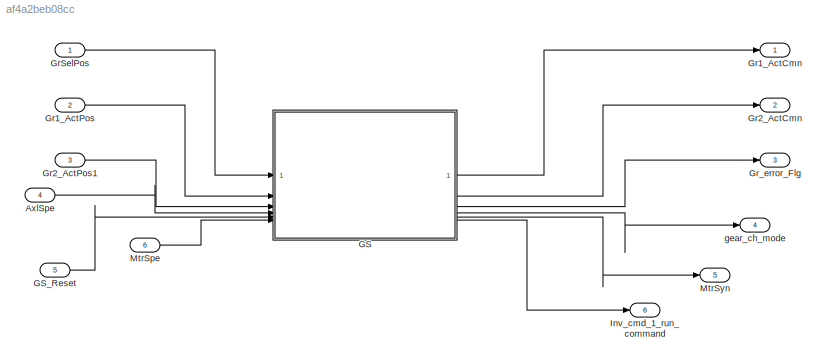
MODEL slx_af4a2beb08cc
KIND model
CONFIG AbsTol = auto
CONFIG EnableMultiTasking = off
CONFIG FixedStep = auto
CONFIG MaxStep = auto
CONFIG MinStep = auto
CONFIG RelTol = 1e-3
CONFIG SampleTimeConstraint = Unconstrained
CONFIG SolverName = VariableStepAuto
CONFIG StartTime = 0.0
CONFIG StopTime = 10.0
BLOCK [Inport] AxlSpe
  Port = 4
  Unit = rpm
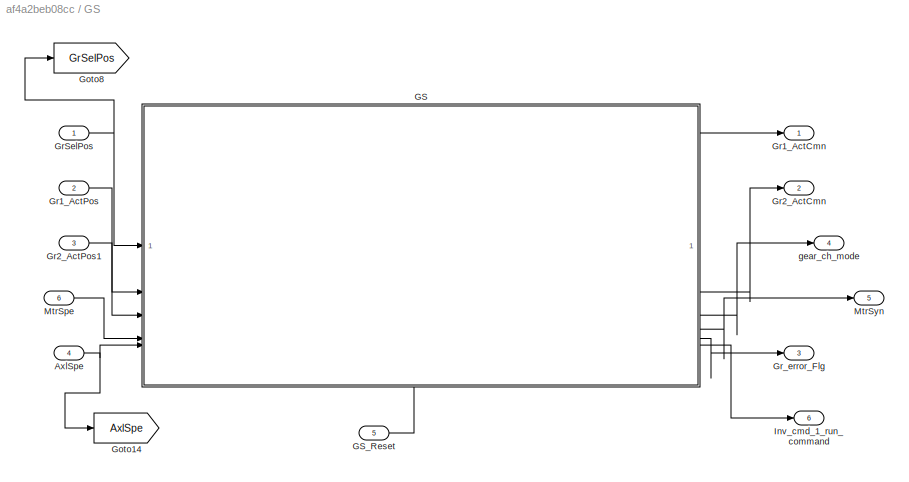
BLOCK [SubSystem] GS
  TreatAsAtomicUnit = on
BLOCK [Inport] GS/AxlSpe
  Port = 4
  Unit = rpm
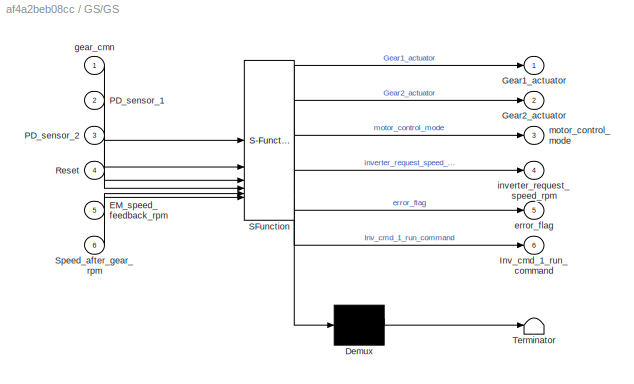
BLOCK [SubSystem] GS/GS
  ErrorFcn = Stateflow.Translate.translate
  PermitHierarchicalResolution = ExplicitOnly
  PortSchema = {"entries":[{"content":{"sides":[{"content":{"connectorIds":["In1","In2","In3","In5","In6"]},"type":"ConnectorPlacement.EquallySpacedRectSide","uuid":"d6e14f2c-3aed-42e8-8853-b3bc1cd3db5e"},{"content":{"connectorIds":["Out1","Out2","Out3","Out4","Out5","Out6"],"side":"RIGHT"},"type":"ConnectorPlacement.EquallySpacedRectSide","uuid":"2ce6c22a-ad7c-4e64-9a73-673441d8f644"},{"content":{"side":"TOP"},...<+430ch>
  SFBlockType = Chart
  TreatAsAtomicUnit = on
BLOCK [Demux] GS/GS/ Demux 
  Outputs = 1
BLOCK [S-Function] GS/GS/ SFunction 
  EnableBusSupport = off
  FunctionName = sf_sfun
  Parameters = actuator_delay,gear_1_lower_threshold,gear_1_upper_threshold,gear_2_lower_threshold,gear_2_upper_threshold,speed_tolerance_diseng_rpm,speed_tolerance_rpm,sync_delay
  PortCounts = [6 7]
  SFcnIsStateOwnerBlock = off
  SFunctionDeploymentMode = off
  Tag = Stateflow S-Function 8
BLOCK [Terminator] GS/GS/ Terminator 
BLOCK [Inport] GS/GS/EM_speed_feedback_rpm
  Port = 5
BLOCK [Outport] GS/GS/Gear1_actuator
BLOCK [Outport] GS/GS/Gear2_actuator
  Port = 2
BLOCK [Outport] GS/GS/Inv_cmd_1_run_command
  Port = 6
BLOCK [Inport] GS/GS/PD_sensor_1
  Port = 2
BLOCK [Inport] GS/GS/PD_sensor_2
  Port = 3
BLOCK [Inport] GS/GS/Reset
  Port = 4
BLOCK [Inport] GS/GS/Speed_after_gear_rpm
  Port = 6
BLOCK [Outport] GS/GS/error_flag
  Port = 5
BLOCK [Inport] GS/GS/gear_cmn
BLOCK [Outport] GS/GS/inverter_request_speed_rpm
  Port = 4
BLOCK [Outport] GS/GS/motor_control_mode
  Port = 3
BLOCK [Inport] GS/GS_Reset
  Port = 5
BLOCK [Goto] GS/Goto14
  Commented = on
  GotoTag = AxlSpe
BLOCK [Goto] GS/Goto8
  Commented = on
  GotoTag = GrSelPos
BLOCK [Outport] GS/Gr1_ActCmn
BLOCK [Inport] GS/Gr1_ActPos
  OutDataTypeStr = boolean
  Port = 2
BLOCK [Outport] GS/Gr2_ActCmn
  Port = 2
BLOCK [Inport] GS/Gr2_ActPos1
  OutDataTypeStr = boolean
  Port = 3
BLOCK [Inport] GS/GrSelPos
BLOCK [Outport] GS/Gr_error_Flg
  Port = 3
BLOCK [Outport] GS/Inv_cmd_1_run_command
  Port = 6
BLOCK [Inport] GS/MtrSpe
  Port = 6
  Unit = rpm
BLOCK [Outport] GS/MtrSyn
  Port = 5
BLOCK [Outport] GS/gear_ch_mode
  Port = 4
BLOCK [Inport] GS_Reset
  Port = 5
BLOCK [Outport] Gr1_ActCmn
BLOCK [Inport] Gr1_ActPos
  Port = 2
BLOCK [Outport] Gr2_ActCmn
  Port = 2
BLOCK [Inport] Gr2_ActPos1
  Port = 3
BLOCK [Inport] GrSelPos
BLOCK [Outport] Gr_error_Flg
  Port = 3
BLOCK [Outport] Inv_cmd_1_run_command
  Port = 6
BLOCK [Inport] MtrSpe
  Port = 6
  Unit = rpm
BLOCK [Outport] MtrSyn
  Port = 5
BLOCK [Outport] gear_ch_mode
  Port = 4
LINE AxlSpe:1 -> GS:4
NET GS/AxlSpe:1 -> GS/GS:6, GS/Goto14:1
LINE GS/GS:1 -> GS/Gr1_ActCmn:1
LINE GS/GS:2 -> GS/Gr2_ActCmn:1
LINE GS/GS:3 -> GS/gear_ch_mode:1
LINE GS/GS:4 -> GS/MtrSyn:1
LINE GS/GS:5 -> GS/Gr_error_Flg:1
LINE GS/GS:6 -> GS/Inv_cmd_1_run_command:1
LINE GS/GS_Reset:1 -> GS/GS:4
LINE GS/Gr1_ActPos:1 -> GS/GS:2
LINE GS/Gr2_ActPos1:1 -> GS/GS:3
NET GS/GrSelPos:1 -> GS/GS:1, GS/Goto8:1
LINE GS/MtrSpe:1 -> GS/GS:5
LINE GS:1 -> Gr1_ActCmn:1
LINE GS:2 -> Gr2_ActCmn:1
LINE GS:3 -> Gr_error_Flg:1
LINE GS:4 -> gear_ch_mode:1
LINE GS:5 -> MtrSyn:1
LINE GS:6 -> Inv_cmd_1_run_command:1
LINE GS_Reset:1 -> GS:5
LINE Gr1_ActPos:1 -> GS:2
LINE Gr2_ActPos1:1 -> GS:3
LINE GrSelPos:1 -> GS:1
LINE MtrSpe:1 -> GS:6
note: NET lines group one-source signal fan-out (src -> all destinations, sorted); 1:1 wires keep LINE
CHART GS/GS states=9 transitions=20
  STATE_LABEL 'Sync\n%if not match the speed after 5 sec, go to the safe mode\n%if not gear disengaged,go to safe mode\n% circuit opens when the gear is engaged (engaged =0)\n%PD_sensor - Position Detection Sensor\n%EM_feedback - 1 -150 / 2-70\nentry:\nInv_cmd_1_run_command=1;\nsafe_mode_trigger = 0;\nduring:\nif gear_cmn == 1\n    gear_rotation_speed_1_rpm = Speed_after_gear_rpm*2.31;\n    if gear_1_lower_threshold <= gear...<+562ch>'
  STATE_LABEL 'Eng_gear1\nentry:\nduring:\nInv_cmd_1_run_command=1;\nGear1_actuator=true;\nGear2_actuator=false;\nmotor_control_mode = false;\nexit:\nEngage_gear_2=0;\nEngage_gear_1=1;\n'
  STATE_LABEL 'Engagging_gear_one\n\nduring:\ninverter_request_speed_rpm = inverter_request_speed_rpm;\nGear1_actuator=true;\nGear2_actuator=false;\nInv_cmd_1_run_command=1;\nexit:\nGear1_actuator=true;\nGear2_actuator=false;\n'
  STATE_LABEL 'disengaging_gear\nentry:\nInv_cmd_1_run_command=1;\nmotor_control_mode = true;\nduring:\nif Engage_gear_1 ==1\n    inverter_request_speed_rpm = Speed_after_gear_rpm*2.31;\n    if abs(EM_speed_feedback_rpm - inverter_request_speed_rpm) <= speed_tolerance_diseng_rpm\n        Gear1_actuator=false;\n    end\nend\nif Engage_gear_2 ==1\n    inverter_request_speed_rpm = Speed_after_gear_rpm*1.011;\n    if abs(EM_spee...<+157ch>'
  STATE_LABEL 'Nutral\nentry:\nInv_cmd_1_run_command=1;\nGear1_actuator=false;\nGear2_actuator=false;\nduring:\nmotor_control_mode = false;\nexit:\nEngage_gear_1=0;\nEngage_gear_2=0;\n'
  STATE_LABEL 'Detecting_gear\nentry:\nsafe_mode_trigger = 0;\nduring:\nif PD_sensor_1 == true || PD_sensor_2 == true\n    safe_mode_trigger = 1;\nelse safe_mode_trigger = 0;\nend\n'
  STATE_LABEL 'Eng_gear2\nentry:\nduring:\nInv_cmd_1_run_command=1;\nGear1_actuator=false;\nGear2_actuator=true;\nmotor_control_mode = false;\n%if abs(EM_speed_feedback_rpm - inverter_request_speed_rpm)>speed_tolerance_rpm\n%  safe_mode_trigger=1;\n%end\nexit:\nEngage_gear_1=0;\nEngage_gear_2=1;'
  STATE_LABEL 'Engagging_gear_two\n\nduring:\nInv_cmd_1_run_command=1;\ninverter_request_speed_rpm = inverter_request_speed_rpm;\nGear1_actuator=false;\nGear2_actuator=true;\nexit:\nGear1_actuator=false;\nGear2_actuator=true;'
  STATE_LABEL 'Safe_mode\nduring:\nEngage_gear_1 = 0;\nEngage_gear_2 = 0;\nGear1_actuator = false;\nGear2_actuator = false;\nmotor_control_mode = false;\nerror_flag=true;\nexit:\nsafe_mode_trigger = 0;\nerror_flag=false;\n'
CHART  states=0 transitions=0
